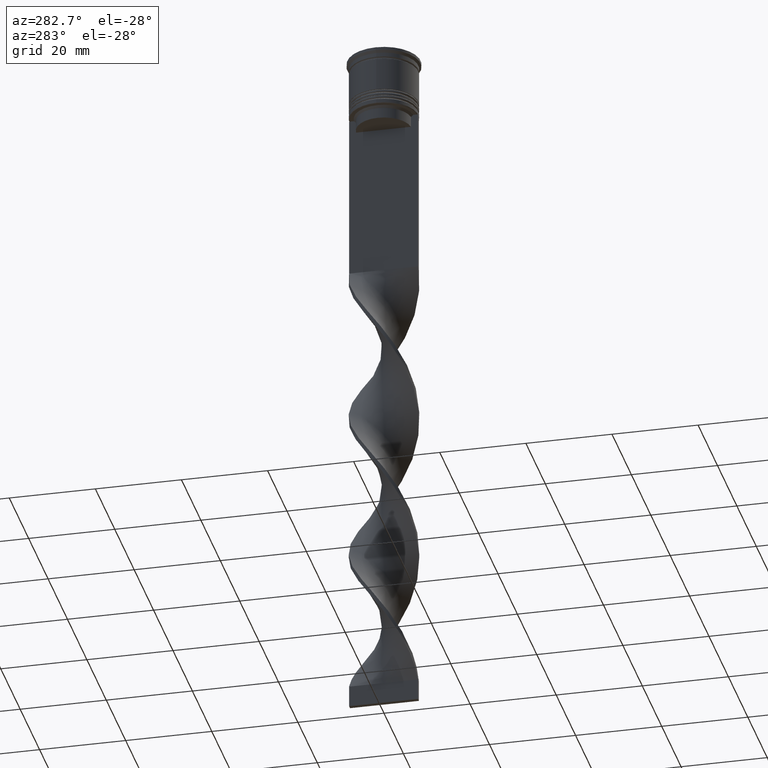
[diagram: clean part render]
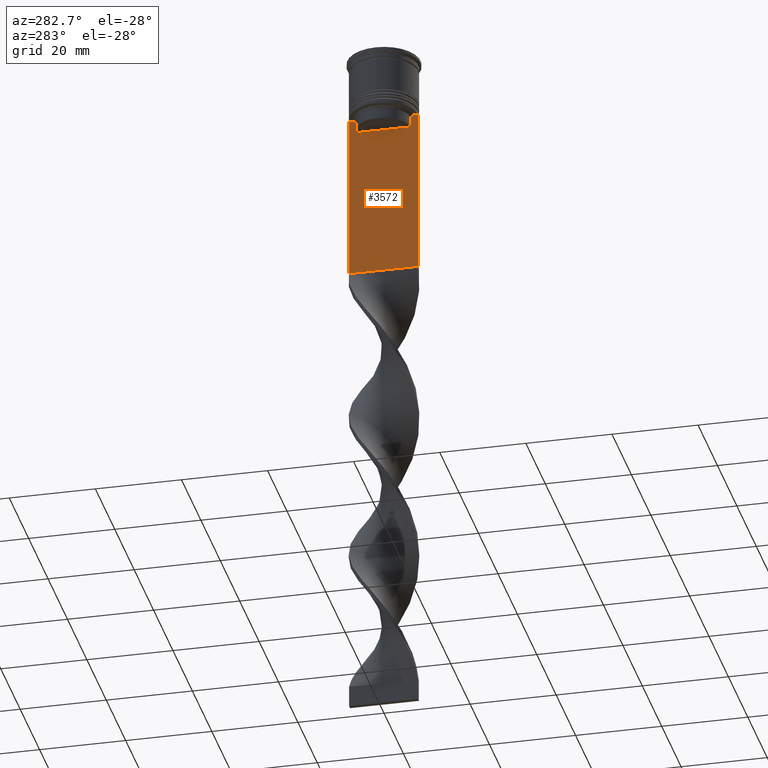
[diagram: same view with one face highlighted and labeled with its STEP entity id]
A machine part, auxiliary view. The second image highlights one B-rep face of the part: STEP entity #3572.
In plain terms, the highlighted planar face has unit normal (-1, 0, 0).
Its self-contained STEP definition (entity closure, byte-faithful):
#28 = EDGE_CURVE ( 'NONE', #3043, #3141, #806, .T. ) ;
#51 = CARTESIAN_POINT ( 'NONE',  ( -0.4999999999999998890, -8.000000000000003553, 2.031219541881394530 ) ) ;
#71 = EDGE_CURVE ( 'NONE', #99, #3043, #1983, .T. ) ;
#85 = VECTOR ( 'NONE', #2198, 1000.000000000000000 ) ;
#91 = VERTEX_POINT ( 'NONE', #2606 ) ;
#99 = VERTEX_POINT ( 'NONE', #891 ) ;
#104 = EDGE_CURVE ( 'NONE', #2147, #2046, #1145, .T. ) ;
#209 = VECTOR ( 'NONE', #3510, 1000.000000000000000 ) ;
#305 = CARTESIAN_POINT ( 'NONE',  ( -0.4999999999999998890, -6.547597841511246131, -14.33335192438652328 ) ) ;
#310 = DIRECTION ( 'NONE',  ( -1.000000000000000000, 0.000000000000000000, 0.000000000000000000 ) ) ;
#388 = VECTOR ( 'NONE', #1430, 1000.000000000000000 ) ;
#472 = CARTESIAN_POINT ( 'NONE',  ( -0.4999999999999998890, -8.000000000000003553, -14.00000000000000178 ) ) ;
#745 = DIRECTION ( 'NONE',  ( 0.000000000000000000, -1.000000000000000000, 0.000000000000000000 ) ) ;
#769 = CARTESIAN_POINT ( 'NONE',  ( -0.4999999999999998890, 6.380438856379708312, 0.000000000000000000 ) ) ;
#800 = LINE ( 'NONE', #1682, #1186 ) ;
#806 = LINE ( 'NONE', #769, #1424 ) ;
#891 = CARTESIAN_POINT ( 'NONE',  ( -0.4999999999999998890, 6.881860213634098500, -14.00000000000000178 ) ) ;
#893 = CARTESIAN_POINT ( 'NONE',  ( -0.4999999999999998890, 6.380438856379708312, -14.50000000000000000 ) ) ;
#901 = CARTESIAN_POINT ( 'NONE',  ( -0.4999999999999998890, -8.000000000000003553, -14.00000000000000178 ) ) ;
#995 = ORIENTED_EDGE ( 'NONE', *, *, #2369, .F. ) ;
#1001 = AXIS2_PLACEMENT_3D ( 'NONE', #2001, #310, #2338 ) ;
#1035 = ORIENTED_EDGE ( 'NONE', *, *, #3388, .F. ) ;
#1087 = LINE ( 'NONE', #2204, #1921 ) ;
#1145 = LINE ( 'NONE', #2297, #2259 ) ;
#1146 = CARTESIAN_POINT ( 'NONE',  ( -0.4999999999999998890, -6.380438856379708312, -17.00000000000000000 ) ) ;
#1183 = CARTESIAN_POINT ( 'NONE',  ( -0.4999999999999998890, 6.547597841304911626, -14.33335192459222718 ) ) ;
#1186 = VECTOR ( 'NONE', #1951, 1000.000000000000000 ) ;
#1194 = ORIENTED_EDGE ( 'NONE', *, *, #3131, .F. ) ;
#1203 = CARTESIAN_POINT ( 'NONE',  ( -0.4999999999999998890, -6.380438856379708312, -14.50000000000000000 ) ) ;
#1352 = LINE ( 'NONE', #1896, #1442 ) ;
#1397 = EDGE_CURVE ( 'NONE', #2241, #1607, #2232, .T. ) ;
#1424 = VECTOR ( 'NONE', #2522, 1000.000000000000000 ) ;
#1430 = DIRECTION ( 'NONE',  ( 0.000000000000000000, -1.000000000000000000, 0.000000000000000000 ) ) ;
#1442 = VECTOR ( 'NONE', #1918, 1000.000000000000000 ) ;
#1484 = EDGE_CURVE ( 'NONE', #2406, #2771, #2646, .T. ) ;
#1540 = CARTESIAN_POINT ( 'NONE',  ( -0.4999999999999998890, -6.714736947305992132, -14.16668390685738999 ) ) ;
#1607 = VERTEX_POINT ( 'NONE', #3569 ) ;
#1649 = EDGE_LOOP ( 'NONE', ( #2423, #3154, #2248, #3176, #1035, #2644, #995, #3748, #2474, #2842, #1194, #2906 ) ) ;
#1678 = LINE ( 'NONE', #2023, #388 ) ;
#1682 = CARTESIAN_POINT ( 'NONE',  ( -0.4999999999999998890, -6.380438856379708312, 0.000000000000000000 ) ) ;
#1720 = CARTESIAN_POINT ( 'NONE',  ( -0.4999999999999998890, 6.714736947114692711, -14.16668390704818847 ) ) ;
#1739 = EDGE_CURVE ( 'NONE', #1994, #2241, #800, .T. ) ;
#1745 = VECTOR ( 'NONE', #2351, 1000.000000000000000 ) ;
#1778 = DIRECTION ( 'NONE',  ( 0.000000000000000000, -1.000000000000000000, 0.000000000000000000 ) ) ;
#1787 = CARTESIAN_POINT ( 'NONE',  ( -0.4999999999999998890, 6.881860213634098500, -14.00000000000000178 ) ) ;
#1896 = CARTESIAN_POINT ( 'NONE',  ( -0.4999999999999998890, 7.999999999999996447, 2.031219541881394530 ) ) ;
#1918 = DIRECTION ( 'NONE',  ( 0.000000000000000000, 0.000000000000000000, -1.000000000000000000 ) ) ;
#1921 = VECTOR ( 'NONE', #745, 1000.000000000000000 ) ;
#1951 = DIRECTION ( 'NONE',  ( -0.000000000000000000, -0.000000000000000000, 1.000000000000000000 ) ) ;
#1983 = B_SPLINE_CURVE_WITH_KNOTS ( 'NONE', 3,
 ( #1787, #1720, #1183, #2645 ),
 .UNSPECIFIED., .F., .F.,
 ( 4, 4 ),
 ( 0.01172465562756038263, 0.01243276816391822651 ),
 .UNSPECIFIED. ) ;
#1994 = VERTEX_POINT ( 'NONE', #1146 ) ;
#2001 = CARTESIAN_POINT ( 'NONE',  ( -0.4999999999999998890, -8.000000000000003553, 2.031219541881394530 ) ) ;
#2017 = CARTESIAN_POINT ( 'NONE',  ( -0.4999999999999998890, -8.000000000000003553, -53.00000000000000000 ) ) ;
#2023 = CARTESIAN_POINT ( 'NONE',  ( -0.4999999999999998890, -8.000000000000003553, -14.00000000000000178 ) ) ;
#2046 = VERTEX_POINT ( 'NONE', #3457 ) ;
#2116 = EDGE_CURVE ( 'NONE', #2046, #99, #1678, .T. ) ;
#2147 = VERTEX_POINT ( 'NONE', #2923 ) ;
#2198 = DIRECTION ( 'NONE',  ( 0.000000000000000000, -1.000000000000000000, 0.000000000000000000 ) ) ;
#2204 = CARTESIAN_POINT ( 'NONE',  ( -0.4999999999999998890, 6.399999999999999467, -17.00000000000000000 ) ) ;
#2213 = EDGE_CURVE ( 'NONE', #1607, #2539, #3257, .T. ) ;
#2232 = B_SPLINE_CURVE_WITH_KNOTS ( 'NONE', 3,
 ( #1203, #305, #1540, #2630 ),
 .UNSPECIFIED., .F., .F.,
 ( 4, 4 ),
 ( 0.02996184199614749730, 0.03067452609193703841 ),
 .UNSPECIFIED. ) ;
#2241 = VERTEX_POINT ( 'NONE', #3609 ) ;
#2248 = ORIENTED_EDGE ( 'NONE', *, *, #104, .F. ) ;
#2259 = VECTOR ( 'NONE', #3509, 1000.000000000000000 ) ;
#2297 = CARTESIAN_POINT ( 'NONE',  ( -0.4999999999999998890, -8.000000000000003553, -14.00000000000000178 ) ) ;
#2338 = DIRECTION ( 'NONE',  ( 0.000000000000000000, 0.000000000000000000, 1.000000000000000000 ) ) ;
#2351 = DIRECTION ( 'NONE',  ( 0.000000000000000000, 1.000000000000000000, 0.000000000000000000 ) ) ;
#2369 = EDGE_CURVE ( 'NONE', #2539, #2406, #3380, .T. ) ;
#2406 = VERTEX_POINT ( 'NONE', #472 ) ;
#2423 = ORIENTED_EDGE ( 'NONE', *, *, #71, .F. ) ;
#2474 = ORIENTED_EDGE ( 'NONE', *, *, #1397, .F. ) ;
#2486 = EDGE_CURVE ( 'NONE', #2147, #91, #1352, .T. ) ;
#2522 = DIRECTION ( 'NONE',  ( 0.000000000000000000, 0.000000000000000000, -1.000000000000000000 ) ) ;
#2539 = VERTEX_POINT ( 'NONE', #3650 ) ;
#2583 = LINE ( 'NONE', #2017, #1745 ) ;
#2598 = PLANE ( 'NONE',  #1001 ) ;
#2606 = CARTESIAN_POINT ( 'NONE',  ( -0.4999999999999998890, 7.999999999999996447, -53.00000000000000000 ) ) ;
#2630 = CARTESIAN_POINT ( 'NONE',  ( -0.4999999999999998890, -6.881860213634098500, -14.00000000000000178 ) ) ;
#2644 = ORIENTED_EDGE ( 'NONE', *, *, #1484, .F. ) ;
#2645 = CARTESIAN_POINT ( 'NONE',  ( -0.4999999999999998890, 6.380438856379708312, -14.50000000000000000 ) ) ;
#2646 = LINE ( 'NONE', #51, #209 ) ;
#2771 = VERTEX_POINT ( 'NONE', #3432 ) ;
#2842 = ORIENTED_EDGE ( 'NONE', *, *, #1739, .F. ) ;
#2901 = FACE_OUTER_BOUND ( 'NONE', #1649, .T. ) ;
#2906 = ORIENTED_EDGE ( 'NONE', *, *, #28, .F. ) ;
#2923 = CARTESIAN_POINT ( 'NONE',  ( -0.4999999999999998890, 7.999999999999996447, -14.00000000000000178 ) ) ;
#2984 = VECTOR ( 'NONE', #1778, 1000.000000000000000 ) ;
#3043 = VERTEX_POINT ( 'NONE', #893 ) ;
#3131 = EDGE_CURVE ( 'NONE', #3141, #1994, #1087, .T. ) ;
#3141 = VERTEX_POINT ( 'NONE', #3599 ) ;
#3154 = ORIENTED_EDGE ( 'NONE', *, *, #2116, .F. ) ;
#3176 = ORIENTED_EDGE ( 'NONE', *, *, #2486, .T. ) ;
#3257 = LINE ( 'NONE', #901, #2984 ) ;
#3380 = LINE ( 'NONE', #3613, #85 ) ;
#3388 = EDGE_CURVE ( 'NONE', #2771, #91, #2583, .T. ) ;
#3432 = CARTESIAN_POINT ( 'NONE',  ( -0.4999999999999998890, -8.000000000000003553, -53.00000000000000000 ) ) ;
#3457 = CARTESIAN_POINT ( 'NONE',  ( -0.4999999999999998890, 7.884161337770806632, -14.00000000000000178 ) ) ;
#3509 = DIRECTION ( 'NONE',  ( 0.000000000000000000, -1.000000000000000000, 0.000000000000000000 ) ) ;
#3510 = DIRECTION ( 'NONE',  ( 0.000000000000000000, 0.000000000000000000, -1.000000000000000000 ) ) ;
#3569 = CARTESIAN_POINT ( 'NONE',  ( -0.4999999999999998890, -6.881860213634098500, -14.00000000000000178 ) ) ;
#3572 = ADVANCED_FACE ( 'NONE', ( #2901 ), #2598, .T. ) ;
#3599 = CARTESIAN_POINT ( 'NONE',  ( -0.4999999999999998890, 6.380438856379708312, -17.00000000000000000 ) ) ;
#3609 = CARTESIAN_POINT ( 'NONE',  ( -0.4999999999999998890, -6.380438856379708312, -14.50000000000000000 ) ) ;
#3613 = CARTESIAN_POINT ( 'NONE',  ( -0.4999999999999998890, -8.000000000000003553, -14.00000000000000178 ) ) ;
#3650 = CARTESIAN_POINT ( 'NONE',  ( -0.4999999999999998890, -7.884161337770806632, -14.00000000000000178 ) ) ;
#3748 = ORIENTED_EDGE ( 'NONE', *, *, #2213, .F. ) ;